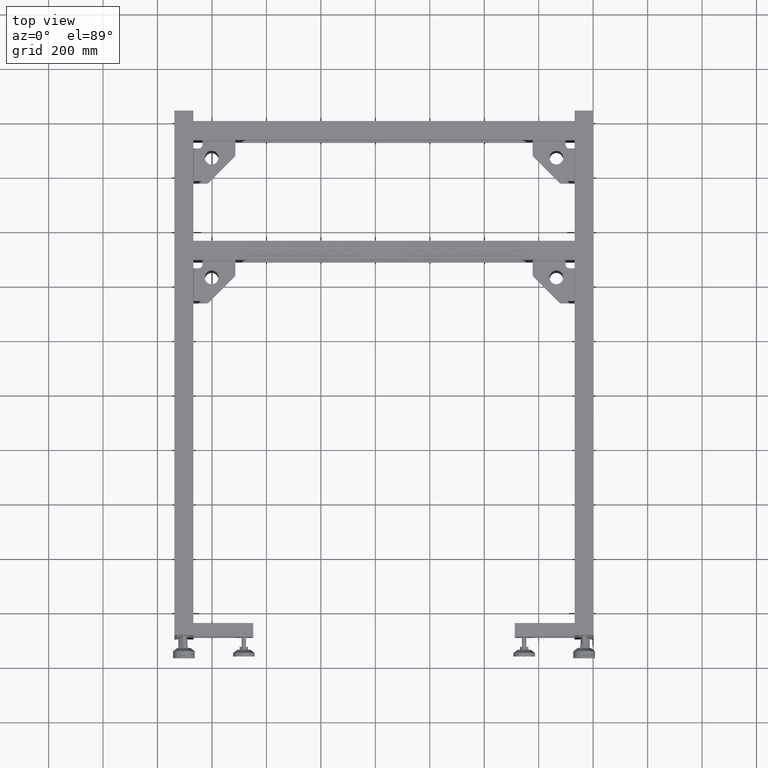
[diagram: clean part render]
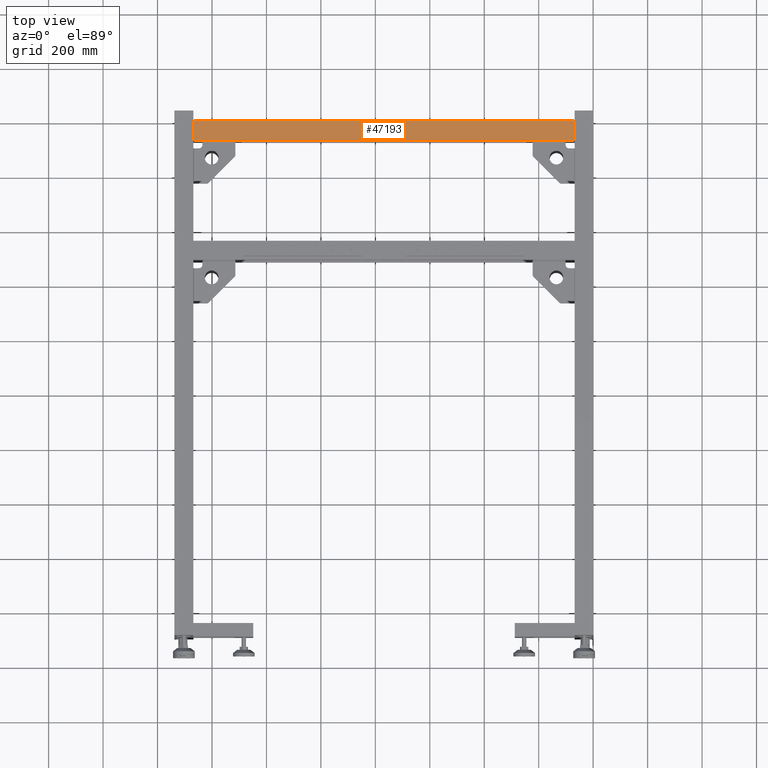
[diagram: same view with one face highlighted and labeled with its STEP entity id]
A machine part, top view. The second image highlights one B-rep face of the part: STEP entity #47193.
In plain terms, the highlighted planar face has unit normal (-0, 0, -1).
Its self-contained STEP definition (entity closure, byte-faithful):
#2940 = VECTOR ( 'NONE', #77521, 1000.000000000000000 ) ;
#4416 = CARTESIAN_POINT ( 'NONE',  ( 129.8275125628156559, 926.9410804020119485, 300.0000000000009095 ) ) ;
#4574 = DIRECTION ( 'NONE',  ( -2.768038506440323819E-16, 1.000000000000000000, 3.603491776919587486E-15 ) ) ;
#10398 = DIRECTION ( 'NONE',  ( -2.768038506440323819E-16, 1.000000000000000000, 3.603491776919587486E-15 ) ) ;
#19429 = EDGE_CURVE ( 'NONE', #37483, #32385, #53970, .T. ) ;
#22013 = VECTOR ( 'NONE', #24601, 1000.000000000000000 ) ;
#24601 = DIRECTION ( 'NONE',  ( -1.000000000000000000, -2.768038506440323819E-16, 0.000000000000000000 ) ) ;
#27708 = DIRECTION ( 'NONE',  ( -9.974603996154482658E-31, 3.603491776919587486E-15, -1.000000000000000000 ) ) ;
#30495 = LINE ( 'NONE', #30881, #47886 ) ;
#30515 = VERTEX_POINT ( 'NONE', #56186 ) ;
#30539 = AXIS2_PLACEMENT_3D ( 'NONE', #59230, #27708, #4574 ) ;
#30881 = CARTESIAN_POINT ( 'NONE',  ( -1266.172487437185964, 926.9410804020117212, 300.0000000000009095 ) ) ;
#32385 = VERTEX_POINT ( 'NONE', #73799 ) ;
#33377 = EDGE_LOOP ( 'NONE', ( #57424, #54292, #40189, #55294 ) ) ;
#34874 = FACE_OUTER_BOUND ( 'NONE', #33377, .T. ) ;
#35269 = PLANE ( 'NONE',  #30539 ) ;
#35502 = LINE ( 'NONE', #4416, #78055 ) ;
#37483 = VERTEX_POINT ( 'NONE', #52953 ) ;
#40189 = ORIENTED_EDGE ( 'NONE', *, *, #19429, .T. ) ;
#42000 = CARTESIAN_POINT ( 'NONE',  ( 129.8275125628156559, 996.9410804020120622, 300.0000000000011937 ) ) ;
#43243 = VERTEX_POINT ( 'NONE', #72709 ) ;
#47193 = ADVANCED_FACE ( 'NONE', ( #34874 ), #35269, .F. ) ;
#47886 = VECTOR ( 'NONE', #66858, 1000.000000000000000 ) ;
#49721 = EDGE_CURVE ( 'NONE', #43243, #37483, #35502, .T. ) ;
#50224 = EDGE_CURVE ( 'NONE', #43243, #30515, #70941, .T. ) ;
#52953 = CARTESIAN_POINT ( 'NONE',  ( 129.8275125628156559, 996.9410804020120622, 300.0000000000011937 ) ) ;
#53970 = LINE ( 'NONE', #42000, #2940 ) ;
#54292 = ORIENTED_EDGE ( 'NONE', *, *, #49721, .T. ) ;
#55294 = ORIENTED_EDGE ( 'NONE', *, *, #70628, .F. ) ;
#56186 = CARTESIAN_POINT ( 'NONE',  ( -1266.172487437185964, 926.9410804020117212, 300.0000000000009095 ) ) ;
#57424 = ORIENTED_EDGE ( 'NONE', *, *, #50224, .F. ) ;
#59230 = CARTESIAN_POINT ( 'NONE',  ( 129.8275125628156559, 926.9410804020119485, 300.0000000000009095 ) ) ;
#66858 = DIRECTION ( 'NONE',  ( 0.000000000000000000, 1.000000000000000000, 3.603491776919587486E-15 ) ) ;
#68111 = CARTESIAN_POINT ( 'NONE',  ( 129.8275125628156559, 926.9410804020119485, 300.0000000000009095 ) ) ;
#70628 = EDGE_CURVE ( 'NONE', #30515, #32385, #30495, .T. ) ;
#70941 = LINE ( 'NONE', #68111, #22013 ) ;
#72709 = CARTESIAN_POINT ( 'NONE',  ( 129.8275125628156559, 926.9410804020119485, 300.0000000000009095 ) ) ;
#73799 = CARTESIAN_POINT ( 'NONE',  ( -1266.172487437185964, 996.9410804020118348, 300.0000000000011937 ) ) ;
#77521 = DIRECTION ( 'NONE',  ( -1.000000000000000000, -2.768038506440323819E-16, 0.000000000000000000 ) ) ;
#78055 = VECTOR ( 'NONE', #10398, 1000.000000000000000 ) ;